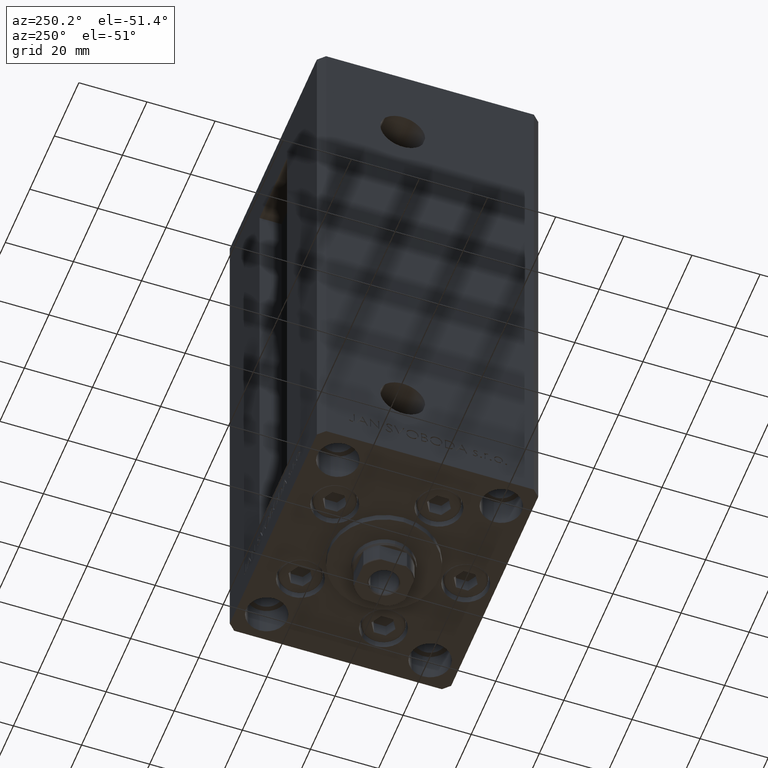
[diagram: clean part render]
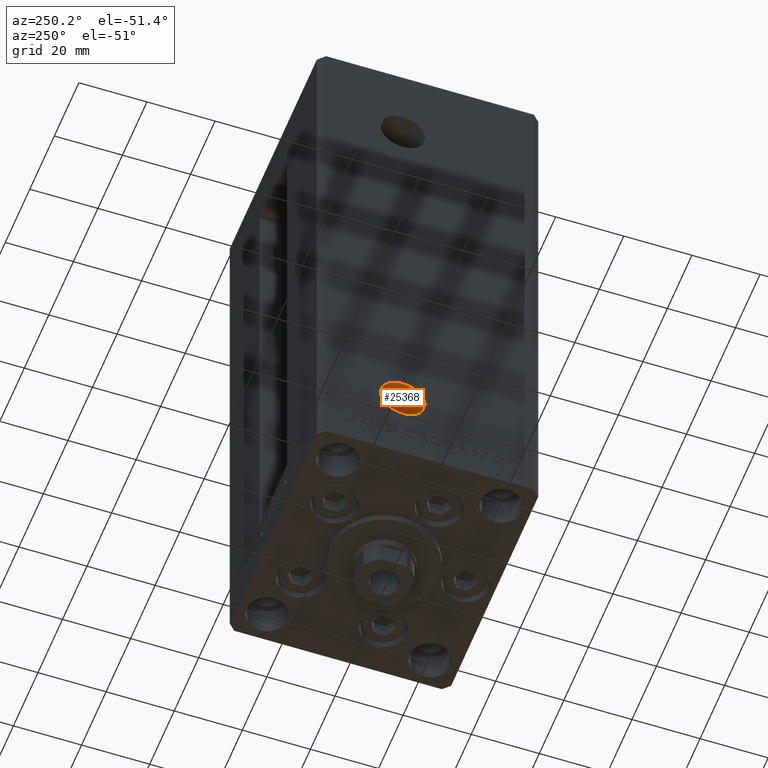
[diagram: same view with one face highlighted and labeled with its STEP entity id]
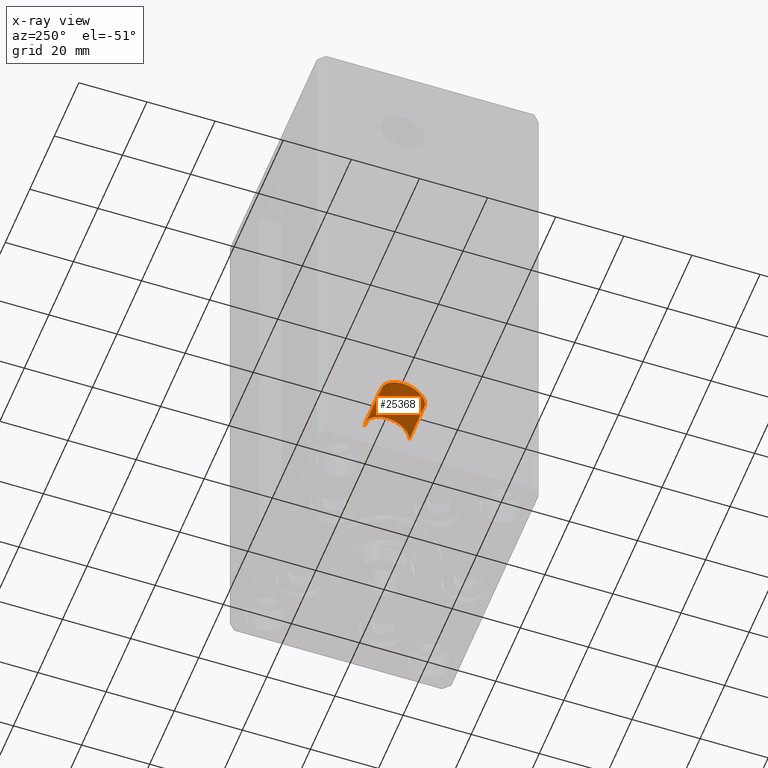
[diagram: x-ray of the same camera — body ghosted, the highlighted face saturated]
A machine part, auxiliary view. The second image highlights one B-rep face of the part: STEP entity #25368.
The next image is the same camera in x-ray: the body ghosted, the highlighted face saturated — about 0% of this face is hidden behind the body in this view.
In plain terms, the highlighted cylindrical surface (edge-blend (fillet) strip) has radius 6.58 mm, axis along (-1, -0, -0).
Its self-contained STEP definition (entity closure, byte-faithful):
#1052 = CARTESIAN_POINT ( 'NONE',  ( -24.50000000000000000, 14.57999999999998408, 9.000000000000007105 ) ) ;
#1304 = DIRECTION ( 'NONE',  ( -1.000000000000000000, -2.275047181608927644E-16, -0.000000000000000000 ) ) ;
#3700 = ORIENTED_EDGE ( 'NONE', *, *, #38926, .T. ) ;
#4315 = DIRECTION ( 'NONE',  ( 0.000000000000000000, -1.000000000000000000, 0.000000000000000000 ) ) ;
#5503 = AXIS2_PLACEMENT_3D ( 'NONE', #14730, #6950, #33566 ) ;
#6458 = LINE ( 'NONE', #13996, #9531 ) ;
#6950 = DIRECTION ( 'NONE',  ( -1.000000000000000000, -2.275047181608927644E-16, 0.000000000000000000 ) ) ;
#6960 = DIRECTION ( 'NONE',  ( -1.000000000000000000, -2.275047181608927644E-16, -0.000000000000000000 ) ) ;
#8285 = CARTESIAN_POINT ( 'NONE',  ( -37.50000000000000000, 1.419999999999975060, 9.000000000000007105 ) ) ;
#9531 = VECTOR ( 'NONE', #6960, 1000.000000000000000 ) ;
#10520 = EDGE_CURVE ( 'NONE', #18466, #33461, #31595, .T. ) ;
#11130 = EDGE_LOOP ( 'NONE', ( #34171, #22963, #45359, #3700 ) ) ;
#11632 = CARTESIAN_POINT ( 'NONE',  ( -24.50000000000000000, 7.999999999999981348, 9.000000000000007105 ) ) ;
#13996 = CARTESIAN_POINT ( 'NONE',  ( -24.50000000000000000, 1.419999999999978613, 9.000000000000007105 ) ) ;
#14730 = CARTESIAN_POINT ( 'NONE',  ( -37.50000000000000000, 7.999999999999977796, 9.000000000000007105 ) ) ;
#16421 = VECTOR ( 'NONE', #1304, 1000.000000000000000 ) ;
#18466 = VERTEX_POINT ( 'NONE', #42569 ) ;
#22110 = CARTESIAN_POINT ( 'NONE',  ( -24.50000000000000000, 7.999999999999981348, 9.000000000000007105 ) ) ;
#22604 = DIRECTION ( 'NONE',  ( -1.000000000000000000, -2.275047181608927644E-16, 0.000000000000000000 ) ) ;
#22649 = CARTESIAN_POINT ( 'NONE',  ( -24.50000000000000000, 14.57999999999998408, 9.000000000000007105 ) ) ;
#22963 = ORIENTED_EDGE ( 'NONE', *, *, #10520, .F. ) ;
#23786 = VERTEX_POINT ( 'NONE', #29800 ) ;
#25368 = ADVANCED_FACE ( 'NONE', ( #46053 ), #38750, .F. ) ;
#25474 = EDGE_CURVE ( 'NONE', #33461, #23786, #28166, .T. ) ;
#28166 = LINE ( 'NONE', #1052, #16421 ) ;
#29800 = CARTESIAN_POINT ( 'NONE',  ( -37.50000000000000000, 14.57999999999998053, 9.000000000000007105 ) ) ;
#30830 = AXIS2_PLACEMENT_3D ( 'NONE', #11632, #30950, #4315 ) ;
#30950 = DIRECTION ( 'NONE',  ( -1.000000000000000000, -2.275047181608927644E-16, -0.000000000000000000 ) ) ;
#31595 = CIRCLE ( 'NONE', #37202, 6.580000000000002736 ) ;
#33461 = VERTEX_POINT ( 'NONE', #22649 ) ;
#33566 = DIRECTION ( 'NONE',  ( 0.000000000000000000, -1.000000000000000000, 0.000000000000000000 ) ) ;
#33899 = DIRECTION ( 'NONE',  ( 0.000000000000000000, -1.000000000000000000, 0.000000000000000000 ) ) ;
#34171 = ORIENTED_EDGE ( 'NONE', *, *, #25474, .F. ) ;
#35011 = VERTEX_POINT ( 'NONE', #8285 ) ;
#37202 = AXIS2_PLACEMENT_3D ( 'NONE', #22110, #22604, #33899 ) ;
#37584 = CIRCLE ( 'NONE', #5503, 6.580000000000002736 ) ;
#38750 = CYLINDRICAL_SURFACE ( 'NONE', #30830, 6.580000000000002736 ) ;
#38926 = EDGE_CURVE ( 'NONE', #35011, #23786, #37584, .T. ) ;
#39741 = EDGE_CURVE ( 'NONE', #18466, #35011, #6458, .T. ) ;
#42569 = CARTESIAN_POINT ( 'NONE',  ( -24.50000000000000000, 1.419999999999978613, 9.000000000000007105 ) ) ;
#45359 = ORIENTED_EDGE ( 'NONE', *, *, #39741, .T. ) ;
#46053 = FACE_OUTER_BOUND ( 'NONE', #11130, .T. ) ;